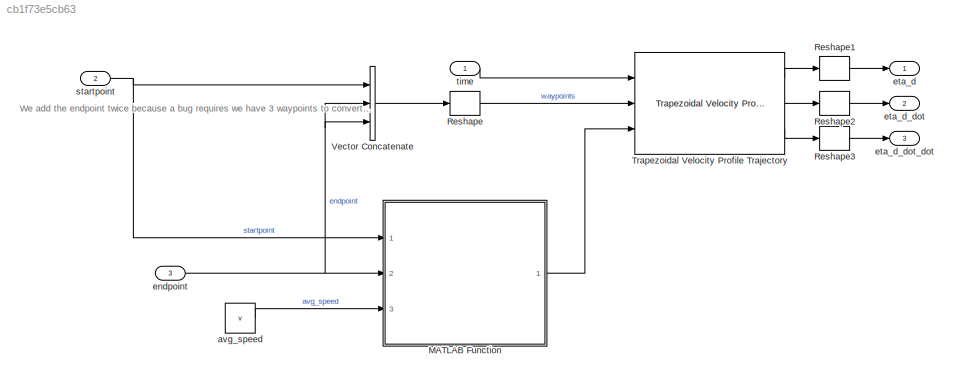
MODEL slx_cb1f73e5cb63
KIND model
CONFIG AbsTol = auto
CONFIG EnableMultiTasking = off
CONFIG FixedStep = auto
CONFIG MaxStep = auto
CONFIG MinStep = auto
CONFIG RelTol = 1e-3
CONFIG SampleTimeConstraint = Unconstrained
CONFIG Solver = VariableStepAuto
CONFIG SolverName = VariableStepAuto
CONFIG StartTime = 0.0
CONFIG StopTime = 10.0
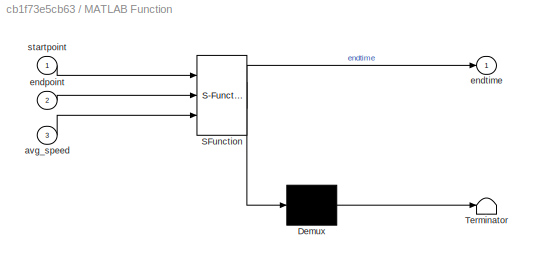
BLOCK [SubSystem] MATLAB Function
  ErrorFcn = Stateflow.Translate.translate
  PermitHierarchicalResolution = ExplicitOnly
  Ports = [3, 1]
  RequestExecContextInheritance = off
  SFBlockType = MATLAB Function
  TreatAsAtomicUnit = on
BLOCK [Demux] MATLAB Function/ Demux 
  Outputs = 1
  Ports = [1, 1]
BLOCK [S-Function] MATLAB Function/ SFunction 
  EnableBusSupport = on
  FunctionName = sf_sfun
  PortCounts = [3 2]
  Ports = [3, 2]
  SFcnIsStateOwnerBlock = off
  SFunctionDeploymentMode = off
  Tag = Stateflow S-Function 2
BLOCK [Terminator] MATLAB Function/ Terminator 
BLOCK [Inport] MATLAB Function/avg_speed
  IconDisplay = Port number
  Port = 3
BLOCK [Inport] MATLAB Function/endpoint
  IconDisplay = Port number
  Port = 2
BLOCK [Outport] MATLAB Function/endtime
  IconDisplay = Port number
BLOCK [Inport] MATLAB Function/startpoint
  IconDisplay = Port number
BLOCK [Reshape] Reshape
  OutputDimensionality = Customize
  OutputDimensions = [6,3]
  Ports = [1, 1]
BLOCK [Reshape] Reshape1
  Ports = [1, 1]
BLOCK [Reshape] Reshape2
  Ports = [1, 1]
BLOCK [Reshape] Reshape3
  Ports = [1, 1]
BLOCK [Reference] Trapezoidal Velocity Profile Trajectory  REF=robotcorelib/Trapezoidal Velocity Profile Trajectory
  Ports = [3, 3]
  SourceBlock = robotcorelib/Trapezoidal Velocity Profile Trajectory
  SourceProductBaseCode = RO
  SourceProductName = Robotics System Toolbox
  SourceType = robotics.slcore.internal.block.TrapVelTrajSys
BLOCK [Concatenate] Vector Concatenate
  NumInputs = 3
  Ports = [3, 1]
BLOCK [Constant] avg_speed
  Value = v
BLOCK [Inport] endpoint
  IconDisplay = Port number
  Port = 3
  PortDimensions = 6
BLOCK [Outport] eta_d
  IconDisplay = Port number
BLOCK [Outport] eta_d_dot
  IconDisplay = Port number
  Port = 2
BLOCK [Outport] eta_d_dot_dot
  IconDisplay = Port number
  Port = 3
BLOCK [Inport] startpoint 
  IconDisplay = Port number
  Port = 2
BLOCK [Inport] time
  IconDisplay = Port number
  PortDimensions = 1
ANNOTATION (root): We add the endpoint twice because a bug requires we have 3 waypoints to convert the trajectory block to C++ code and adding the endpoint twice doesn't change the trajectory
LINE MATLAB Function:1 -> Trapezoidal Velocity Profile Trajectory:3
LINE Reshape1:1 -> eta_d:1
LINE Reshape2:1 -> eta_d_dot:1
LINE Reshape3:1 -> eta_d_dot_dot:1
LINE Reshape:1 -> Trapezoidal Velocity Profile Trajectory:2
LINE Trapezoidal Velocity Profile Trajectory:1 -> Reshape1:1
LINE Trapezoidal Velocity Profile Trajectory:2 -> Reshape2:1
LINE Trapezoidal Velocity Profile Trajectory:3 -> Reshape3:1
LINE Vector Concatenate:1 -> Reshape:1
LINE avg_speed:1 -> MATLAB Function:3
NET endpoint:1 -> MATLAB Function:2, Vector Concatenate:2, Vector Concatenate:3
NET startpoint :1 -> MATLAB Function:1, Vector Concatenate:1
LINE time:1 -> Trapezoidal Velocity Profile Trajectory:1
note: NET lines group one-source signal fan-out (src -> all destinations, sorted); 1:1 wires keep LINE
CHART MATLAB Function states=1 transitions=1
  STATE_LABEL 'eML_blk_kernel()'
  STATE_LABEL "SCRIPT:\nfunction endtime = endtime_calculation(startpoint, endpoint, avg_speed)\n%#codegen\n\n% Endtime is calculated as dist from startpoint to endpoint divided by avg speed\nendtime = norm(startpoint-endpoint)/avg_speed;\n\n% Needed for simulation to compile (won't happen in actual use case)\nif endtime <= 0\n    endtime = 1;\nend\n\nend\n"
